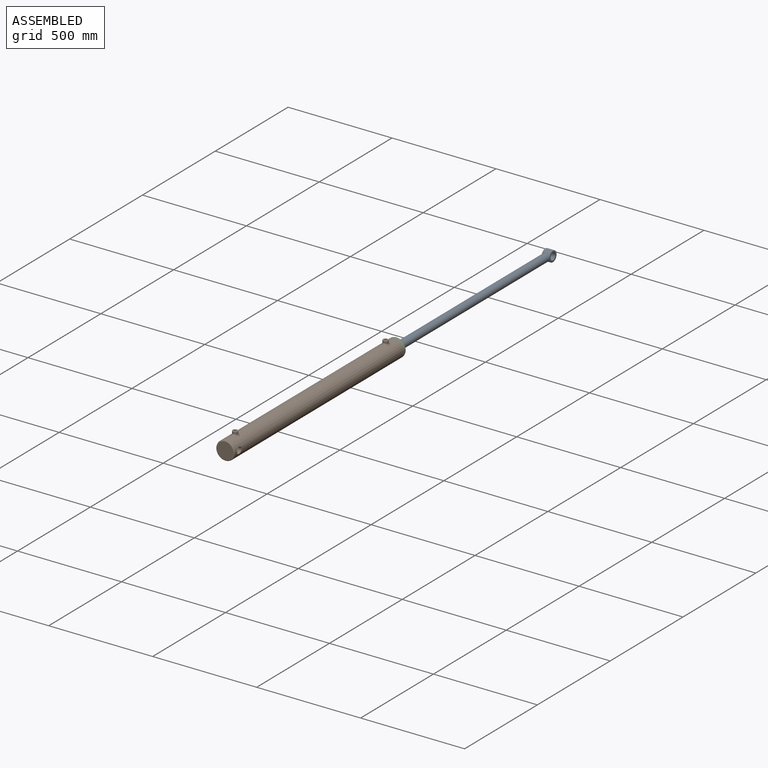
[diagram: assembled view]
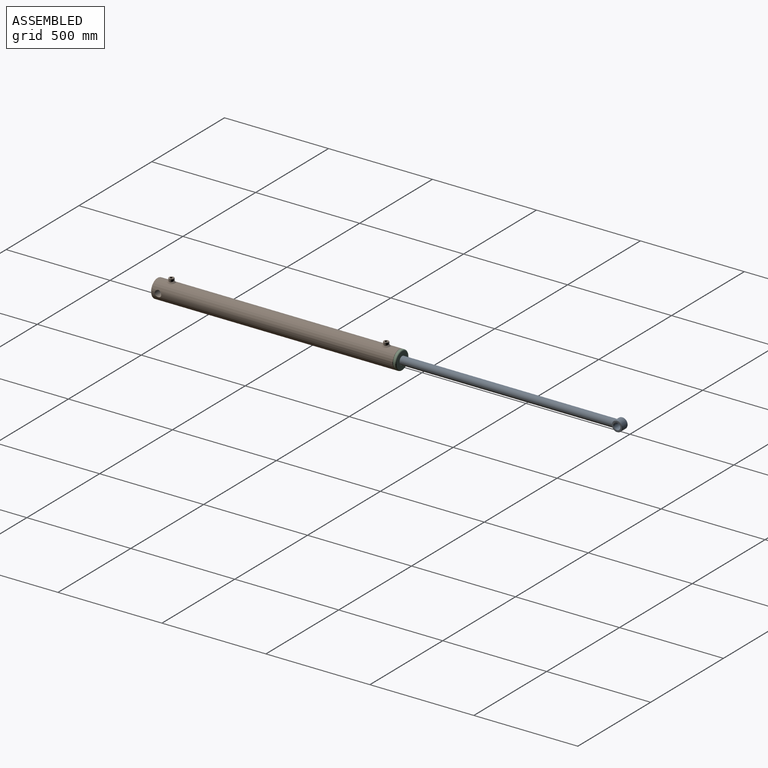
[diagram: assembled view, second angle]
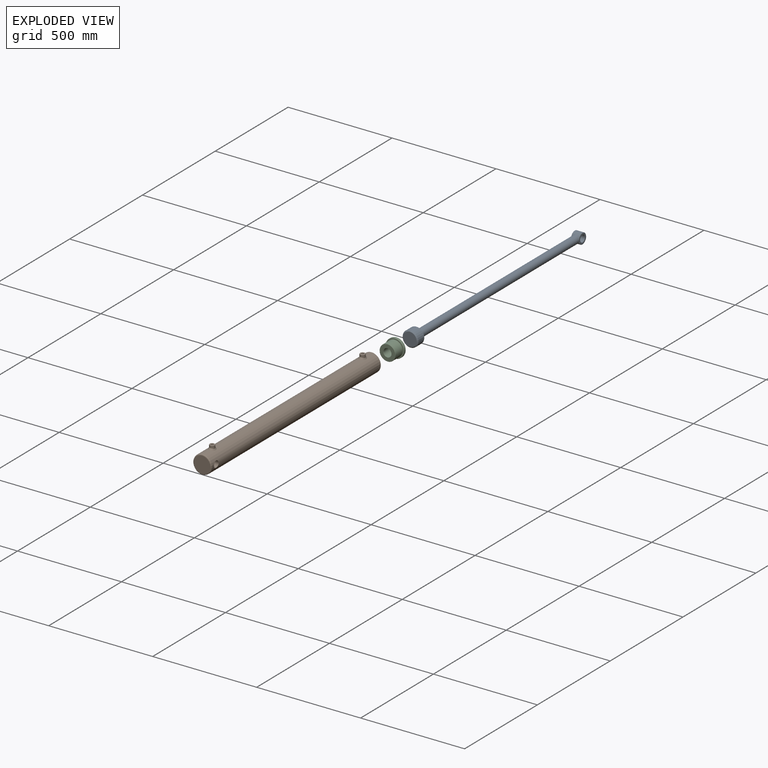
[diagram: exploded view]
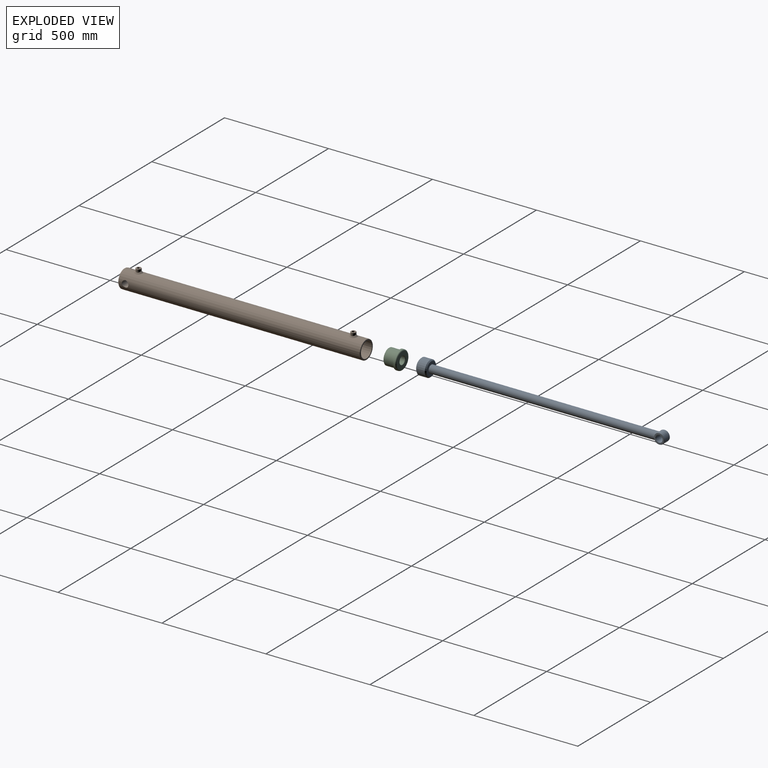
[diagram: exploded view, second angle]
ASSEMBLY  parts=3 mates=2
PART A: 14 faces, bbox 1184.5x76.2x76.2 mm
  f0: cylinder r=25.5mm len=51mm, axis (0,-1,0), area 4556.5mm2, adj f4,f6,f8
  f1: plane 49x49mm, normal (0,1,0), area 991.1mm2, adj f5,f6
  f2: plane 49x49mm, normal (0,-1,0), area 991.1mm2, adj f7,f8
  f3: cylinder r=15.88mm len=36.1mm, axis (0,1,0), area 3600.8mm2, adj f5,f7
  f4: cylinder r=19.05mm len=1092.05mm, axis (-1,0,0), area 130191.6mm2, adj f0,f6,f8,f11
  f5: cone r=15.88mm half-angle=45deg, axis (0,1,0), area 145.5mm2, adj f1,f3
  f6: cone r=25.5mm half-angle=45deg, axis (0,-1,0), area 210.5mm2, adj f0,f1,f4
  f7: cone r=15.88mm half-angle=45deg, axis (0,-1,0), area 145.5mm2, adj f2,f3
  f8: cone r=24.5mm half-angle=45deg, axis (0,1,0), area 210.5mm2, adj f0,f2,f4
  f9: cylinder r=38.1mm len=76.2mm, axis (1,0,0), area 9575.6mm2, adj f12,f13
  f10: plane 66.2x66.2mm, normal (-1,0,0), area 3442mm2, adj f12
  f11: plane 66.2x66.2mm, normal (1,0,0), area 2301.9mm2, adj f4,f13
  f12: cone r=33.1mm half-angle=45deg, axis (1,0,0), area 1581.7mm2, adj f9,f10
  f13: cone r=38.1mm half-angle=45deg, axis (-1,0,0), area 1581.7mm2, adj f9,f11
PART B: 19 faces, bbox 96.2x1165x110.6 mm
  f0: cylinder r=44.45mm len=1159mm, axis (0,-1,0), area 320041mm2, adj f3,f10,f11,f17,f18
  f1: plane 86.9x86.9mm, normal (0,1,0), area 1370.7mm2, adj f12,f18
  f2: plane 78.9x78.9mm, normal (0,-1,0), area 4889.3mm2, adj f17
  f3: cylinder r=15.88mm len=83.04mm, axis (1,0,0), area 8282.6mm2, adj f0
  f4: cylinder r=12.5mm len=25mm, axis (0,0,-1), area 1104mm2, adj f9,f11
  f5: plane 23x23mm, normal (0,0,1), area 288.8mm2, adj f9,f15
  f6: cylinder r=12.5mm len=25mm, axis (0,0,-1), area 1104mm2, adj f8,f10
  f7: plane 23x23mm, normal (0,0,1), area 288.8mm2, adj f8,f16
  f8: cone r=11.5mm half-angle=45deg, axis (0,0,-1), area 106.6mm2, adj f6,f7
  f9: cone r=11.5mm half-angle=45deg, axis (0,0,-1), area 106.6mm2, adj f4,f5
  f10: bspline ~38.33x33.31mm, area 819.5mm2, adj f0,f6
  f11: bspline ~38.33x33.31mm, area 819.5mm2, adj f0,f4
  f12: cylinder r=38.1mm len=1100mm, axis (0,1,0), area 263125.6mm2, adj f1,f13,f15,f16
  f13: plane 76.2x76.2mm, normal (0,1,0), area 4560.4mm2, adj f12,f14
  f14: cylinder r=38.1mm len=9.86mm, axis (0,1,0), area 0mm2, adj f13,f15
  f15: cylinder r=6.35mm len=24.88mm, axis (0,0,1), area 981.9mm2, adj f5,f12,f14
  f16: cylinder r=6.35mm len=24.88mm, axis (0,0,1), area 976.8mm2, adj f7,f12
  f17: torus R=39.45mm, axis (0,-1,0), area 2103.9mm2, adj f0,f2
  f18: cone r=44.45mm half-angle=45deg, axis (0,-1,0), area 390.5mm2, adj f0,f1
PART C: 11 faces, bbox 96.2x65x96.2 mm
  f0: cylinder r=44.45mm len=88.9mm, axis (0,1,0), area 2513.6mm2, adj f5,f7
  f1: plane 86.9x86.9mm, normal (0,-1,0), area 1370.7mm2, adj f3,f5
  f2: plane 78.9x78.9mm, normal (0,1,0), area 3626.3mm2, adj f7,f9
  f3: cylinder r=38.1mm len=76.2mm, axis (0,1,0), area 11730.1mm2, adj f1,f6
  f4: plane 74.2x74.2mm, normal (0,-1,0), area 3061.2mm2, adj f6,f10
  f5: cone r=43.45mm half-angle=45deg, axis (0,1,0), area 390.5mm2, adj f0,f1
  f6: cone r=37.1mm half-angle=45deg, axis (0,1,0), area 334.1mm2, adj f3,f4
  f7: torus R=39.45mm, axis (0,-1,0), area 2103.9mm2, adj f0,f2
  f8: cylinder r=19.05mm len=63mm, axis (0,1,0), area 7540.8mm2, adj f9,f10
  f9: cone r=19.05mm half-angle=45deg, axis (0,1,0), area 173.7mm2, adj f2,f8
  f10: cone r=19.05mm half-angle=45deg, axis (0,-1,0), area 173.7mm2, adj f4,f8
PLACE A rot(axis=(0,0,1),90deg) t=(63.6,1845.71,286.57)mm
PLACE B t=(63.6,-379.29,286.57)mm fixed
PLACE C t=(63.6,800.71,286.57)mm
MATE slider A.f4 <-> C.f8  axis (0,1,0) through (63.6,736.71,286.57)mm
MATE fastened C.f3 <-> B.f12  axis (0,-1,0) through (63.6,785.71,286.57)mm
